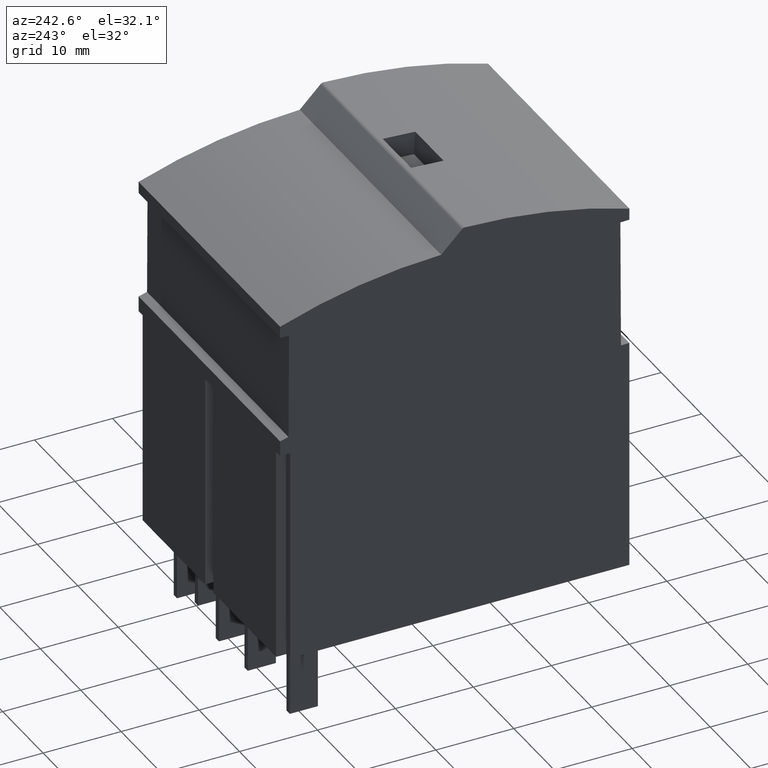
[diagram: clean part render]
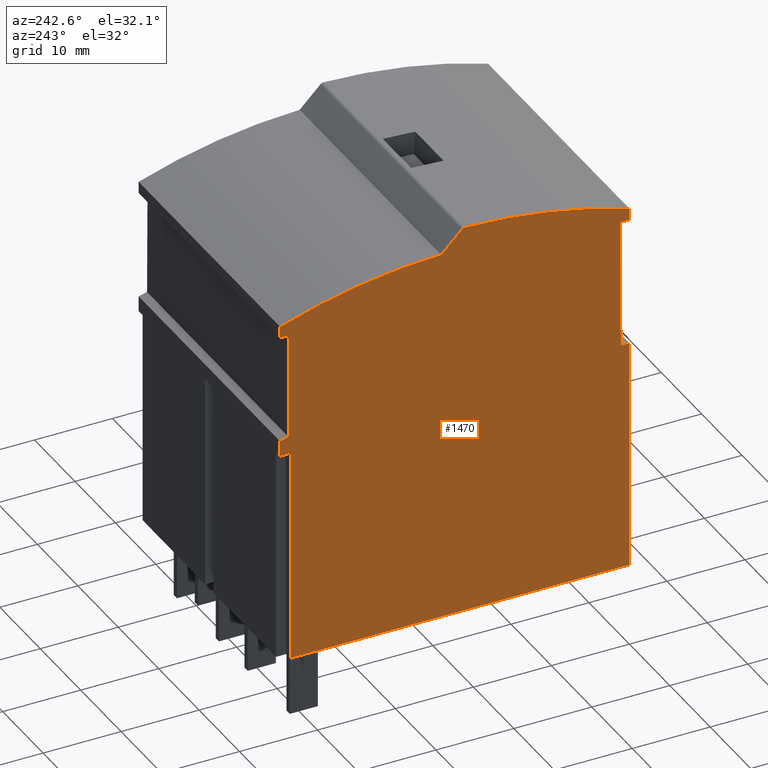
[diagram: same view with one face highlighted and labeled with its STEP entity id]
A machine part, auxiliary view. The second image highlights one B-rep face of the part: STEP entity #1470.
In plain terms, the highlighted planar face has unit normal (-1, 0, 0).
Its self-contained STEP definition (entity closure, byte-faithful):
#10=CARTESIAN_POINT('',(146.390715537786,179.143731448402,
97.3023716596159));
#20=DIRECTION('',(-1.22476300099142E-16,7.51442445056147E-19,1.));
#30=DIRECTION('',(1.,1.20996962449382E-16,1.22476300099142E-16));
#40=AXIS2_PLACEMENT_3D('',#10,#20,#30);
#50=PLANE('',#40);
#60=CARTESIAN_POINT('',(208.361467938182,193.865880918265,
97.3023716596159));
#70=DIRECTION('',(-1.,-1.20996962449382E-16,-1.22476300099142E-16));
#80=VECTOR('',#70,1.);
#90=LINE('',#60,#80);
#100=CARTESIAN_POINT('',(117.520282034003,193.865880918265,
97.3023716596159));
#110=VERTEX_POINT('',#100);
#120=CARTESIAN_POINT('',(116.220282034003,193.865880918265,
97.3023716596159));
#130=VERTEX_POINT('',#120);
#140=EDGE_CURVE('',#110,#130,#90,.T.);
#150=ORIENTED_EDGE('',*,*,#140,.F.);
#160=CARTESIAN_POINT('',(116.220282034003,129.559606958593,
97.3023716596159));
#170=DIRECTION('',(-1.20996962449382E-16,1.,-7.51442445056162E-19));
#180=VECTOR('',#170,1.);
#190=LINE('',#160,#180);
#200=CARTESIAN_POINT('',(116.220282034003,195.841321256914,
97.3023716596159));
#210=VERTEX_POINT('',#200);
#220=EDGE_CURVE('',#130,#210,#190,.T.);
#230=ORIENTED_EDGE('',*,*,#220,.F.);
#240=CARTESIAN_POINT('',(208.361467938182,220.084133437355,
97.3023716596159));
#250=DIRECTION('',(0.967087111640255,0.254445511847447,
9.696455122772E-17));
#260=VECTOR('',#250,1.);
#270=LINE('',#240,#260);
#280=CARTESIAN_POINT('',(117.305068966928,196.126734187219,
97.3023716596159));
#290=VERTEX_POINT('',#280);
#300=EDGE_CURVE('',#210,#290,#270,.T.);
#310=ORIENTED_EDGE('',*,*,#300,.F.);
#320=CARTESIAN_POINT('',(117.003844873419,129.559606958593,
97.3023716596159));
#330=DIRECTION('',(-0.00452507148889568,-0.9999897618116,
3.1770130048748E-19));
#340=VECTOR('',#330,1.);
#350=LINE('',#320,#340);
#360=CARTESIAN_POINT('',(117.366617899253,209.728354035,97.3023716596159
));
#370=VERTEX_POINT('',#360);
#380=EDGE_CURVE('',#370,#290,#350,.T.);
#390=ORIENTED_EDGE('',*,*,#380,.T.);
#400=CARTESIAN_POINT('',(208.361467938182,207.728112610668,
97.302371659616));
#410=DIRECTION('',(0.999758485140535,-0.0219766100548486,
2.81315355535389E-20));
#420=VECTOR('',#410,1.);
#430=LINE('',#400,#420);
#440=CARTESIAN_POINT('',(116.220116580356,209.753556334142,
97.3023716596159));
#450=VERTEX_POINT('',#440);
#460=EDGE_CURVE('',#450,#370,#430,.T.);
#470=ORIENTED_EDGE('',*,*,#460,.T.);
#480=CARTESIAN_POINT('',(116.220116580356,129.559606958593,
97.302371659616));
#490=DIRECTION('',(-1.20996962449382E-16,1.,-7.51442445056162E-19));
#500=VECTOR('',#490,1.);
#510=LINE('',#480,#500);
#520=CARTESIAN_POINT('',(116.220116580356,211.240217151238,
97.3023716596159));
#530=VERTEX_POINT('',#520);
#540=EDGE_CURVE('',#450,#530,#510,.T.);
#550=ORIENTED_EDGE('',*,*,#540,.F.);
#560=CARTESIAN_POINT('',(138.620116580356,145.977364011033,
97.302371659616));
#570=DIRECTION('',(1.16201844070816E-20,-7.51442445056162E-19,-1.));
#580=DIRECTION('',(-1.,-1.20996962449382E-16,-1.16201844070815E-20));
#590=AXIS2_PLACEMENT_3D('',#560,#570,#580);
#600=CIRCLE('',#590,69.);
#610=CARTESIAN_POINT('',(136.88410159658,214.955521800119,
97.3023716596159));
#620=VERTEX_POINT('',#610);
#630=EDGE_CURVE('',#530,#620,#600,.T.);
#640=ORIENTED_EDGE('',*,*,#630,.F.);
#650=CARTESIAN_POINT('',(208.361467938182,286.432888141721,
97.302371659616));
#660=DIRECTION('',(0.707106781186548,0.707106781186547,
-5.23133337377726E-19));
#670=VECTOR('',#660,1.);
#680=LINE('',#650,#670);
#690=CARTESIAN_POINT('',(139.547981314317,217.619401517857,
97.3023716596159));
#700=VERTEX_POINT('',#690);
#710=EDGE_CURVE('',#620,#700,#680,.T.);
#720=ORIENTED_EDGE('',*,*,#710,.F.);
#730=CARTESIAN_POINT('',(139.901534704911,217.265848127263,
97.302371659616));
#740=DIRECTION('',(1.16201844070816E-20,-7.51442445056162E-19,-1.));
#750=DIRECTION('',(-1.,-1.20996962449382E-16,-1.16201844070815E-20));
#760=AXIS2_PLACEMENT_3D('',#730,#740,#750);
#770=CIRCLE('',#760,0.5);
#780=CARTESIAN_POINT('',(139.910520806766,217.765767370715,
97.302371659616));
#790=VERTEX_POINT('',#780);
#800=EDGE_CURVE('',#700,#790,#770,.T.);
#810=ORIENTED_EDGE('',*,*,#800,.F.);
#820=CARTESIAN_POINT('',(138.620116580356,145.977364011033,
97.302371659616));
#830=DIRECTION('',(1.16201844070816E-20,-7.51442445056162E-19,-1.));
#840=DIRECTION('',(-1.,-1.20996962449382E-16,-1.16201844070815E-20));
#850=AXIS2_PLACEMENT_3D('',#820,#830,#840);
#860=CIRCLE('',#850,71.8);
#870=CARTESIAN_POINT('',(161.020116580356,214.193784321688,
97.3023716596159));
#880=VERTEX_POINT('',#870);
#890=EDGE_CURVE('',#790,#880,#860,.T.);
#900=ORIENTED_EDGE('',*,*,#890,.F.);
#910=CARTESIAN_POINT('',(161.020116580356,129.559606958593,
97.302371659616));
#920=DIRECTION('',(1.20996962449382E-16,-1.,7.51442445056162E-19));
#930=VECTOR('',#920,1.);
#940=LINE('',#910,#930);
#950=CARTESIAN_POINT('',(161.020116580356,212.70304246732,
97.3023716596159));
#960=VERTEX_POINT('',#950);
#970=EDGE_CURVE('',#880,#960,#940,.T.);
#980=ORIENTED_EDGE('',*,*,#970,.F.);
#990=CARTESIAN_POINT('',(208.361467938182,213.743696218925,
97.3023716596159));
#1000=DIRECTION('',(-0.999758485140535,-0.0219766100548489,
-1.21425746538743E-16));
#1010=VECTOR('',#1000,1.);
#1020=LINE('',#990,#1010);
#1030=CARTESIAN_POINT('',(159.860269816685,212.677546809691,
97.3023716596159));
#1040=VERTEX_POINT('',#1030);
#1050=EDGE_CURVE('',#960,#1040,#1020,.T.);
#1060=ORIENTED_EDGE('',*,*,#1050,.F.);
#1070=CARTESIAN_POINT('',(160.236388287293,129.559606958593,
97.3023716596159));
#1080=DIRECTION('',(0.00452507148889592,-0.9999897618116,
1.1851682028062E-18));
#1090=VECTOR('',#1080,1.);
#1100=LINE('',#1070,#1090);
#1110=CARTESIAN_POINT('',(159.935164193784,196.126734187219,
97.3023716596159));
#1120=VERTEX_POINT('',#1110);
#1130=EDGE_CURVE('',#1040,#1120,#1100,.T.);
#1140=ORIENTED_EDGE('',*,*,#1130,.F.);
#1150=CARTESIAN_POINT('',(208.361467938182,196.126734187219,
97.3023716596159));
#1160=DIRECTION('',(1.,1.20996962449382E-16,1.22476300099142E-16));
#1170=VECTOR('',#1160,1.);
#1180=LINE('',#1150,#1170);
#1190=CARTESIAN_POINT('',(161.020282034004,196.126734187219,
97.3023716596159));
#1200=VERTEX_POINT('',#1190);
#1210=EDGE_CURVE('',#1120,#1200,#1180,.T.);
#1220=ORIENTED_EDGE('',*,*,#1210,.F.);
#1230=CARTESIAN_POINT('',(161.020282034004,190.390329941232,
97.3023716596159));
#1240=DIRECTION('',(-1.20996962449382E-16,1.,-7.51460437040554E-19));
#1250=VECTOR('',#1240,1.);
#1260=LINE('',#1230,#1250);
#1270=CARTESIAN_POINT('',(161.020282034004,166.31959949414,
97.3023716596159));
#1280=VERTEX_POINT('',#1270);
#1290=EDGE_CURVE('',#1280,#1200,#1260,.T.);
#1300=ORIENTED_EDGE('',*,*,#1290,.T.);
#1310=CARTESIAN_POINT('',(172.088709993804,166.31959949414,
97.3023716596159));
#1320=DIRECTION('',(-1.,4.33680868994202E-19,-1.22299316603579E-16));
#1330=VECTOR('',#1320,1.);
#1340=LINE('',#1310,#1330);
#1350=CARTESIAN_POINT('',(117.520282034003,166.31959949414,
97.3023716596159));
#1360=VERTEX_POINT('',#1350);
#1370=EDGE_CURVE('',#1280,#1360,#1340,.T.);
#1380=ORIENTED_EDGE('',*,*,#1370,.F.);
#1390=CARTESIAN_POINT('',(117.520282034003,190.238485679583,
97.3023716596159));
#1400=DIRECTION('',(-1.20996962449382E-16,1.,-7.51460437040554E-19));
#1410=VECTOR('',#1400,1.);
#1420=LINE('',#1390,#1410);
#1430=EDGE_CURVE('',#1360,#110,#1420,.T.);
#1440=ORIENTED_EDGE('',*,*,#1430,.F.);
#1450=EDGE_LOOP('',(#1440,#1380,#1300,#1220,#1140,#1060,#980,#900,#810,
#720,#640,#550,#470,#390,#310,#230,#150));
#1460=FACE_OUTER_BOUND('',#1450,.T.);
#1470=ADVANCED_FACE('',(#1460),#50,.T.);